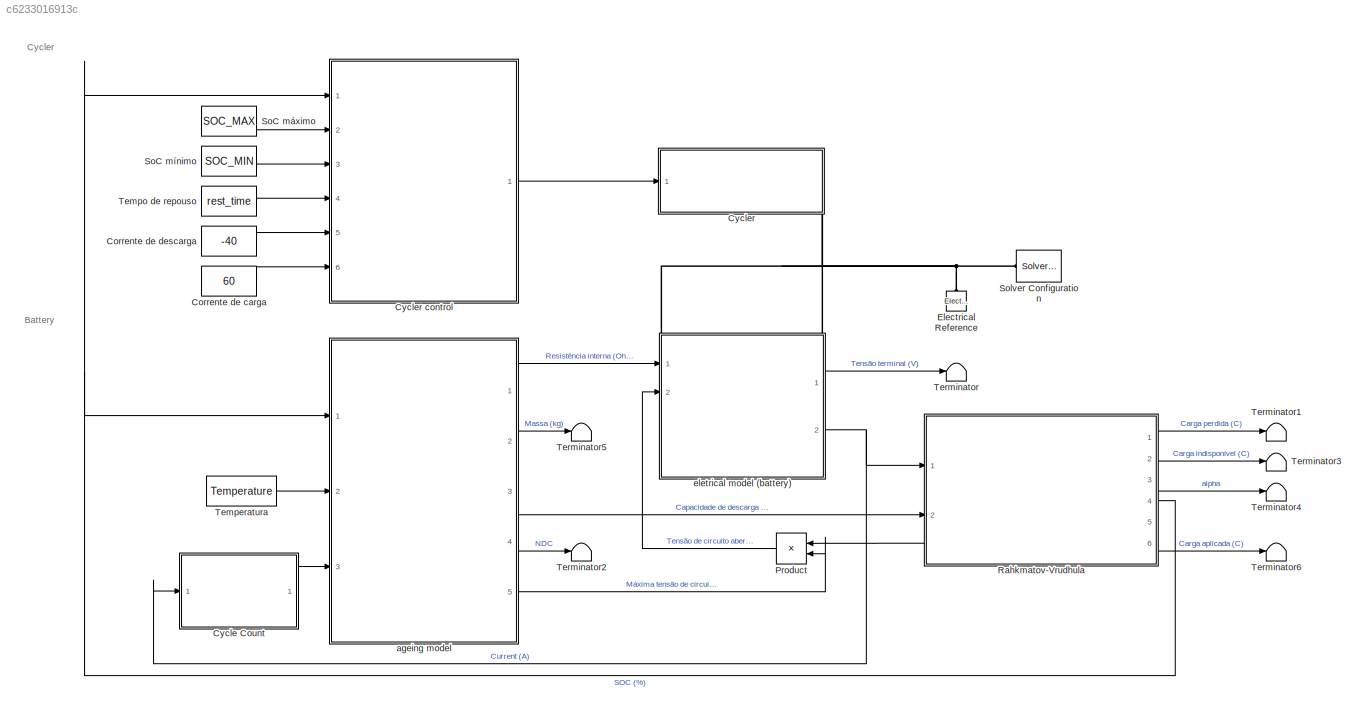
MODEL slx_c6233016913c
KIND model
CONFIG PostLoadFcn = load('input_modelo_bateria.mat')
BLOCK [Constant] Corrente de carga
  NameLocation = left
  Value = 60
BLOCK [Constant] Corrente de descarga
  NameLocation = left
  Value = -40
BLOCK [SubSystem] Cycle Count
  Ports = [1, 1]
  ReferencedSubsystem = cycle_count
  RequestExecContextInheritance = off
BLOCK [SubSystem] Cycler
  NameLocation = top
  PortSchema = {"entries":[{"content":{"sides":[{"content":{"connectorIds":["In1"]},"type":"ConnectorPlacement.EquallySpacedRectSide","uuid":"1f5119c1-e4c4-4d36-9ce4-0a74503307ce"},{"content":{"connectorIds":[],"side":"RIGHT"},"type":"ConnectorPlacement.EquallySpacedRectSide","uuid":"dcdfbcd6-0df9-4737-b1f4-f8955107c991"},{"content":{"connectorIds":[],"side":"TOP"},"type":"ConnectorPlacement.EquallySpacedRectSid...<+395ch>
  Ports = [1, 0, 0, 0, 0, 0, 2]
  ReferencedSubsystem = constant_current_load
  RequestExecContextInheritance = off
BLOCK [SubSystem] Cycler control
  Ports = [6, 1]
  ReferencedSubsystem = cycling_control
  RequestExecContextInheritance = off
BLOCK [Reference] Electrical Reference  REF=fl_lib/Electrical/Electrical Elements/Electrical Reference
  NameLocation = right
  Ports = [0, 0, 0, 0, 0, 1]
  SourceBlock = fl_lib/Electrical/Electrical Elements/Electrical Reference
  SourceProductBaseCode = PW,SS,VE
  SourceType = Electrical Reference
BLOCK [Product] Product
  Ports = [2, 1]
BLOCK [SubSystem] Rahkmatov-Vrudhula
  PortSchema = {"entries":[{"content":{"sides":[{"content":{"connectorIds":["In1","In2","Out6"]},"type":"ConnectorPlacement.EquallySpacedRectSide","uuid":"83f3e873-db9f-47d1-b7c3-7eda48a10b32"},{"content":{"connectorIds":["Out1","Out2","Out3","Out4","Out5"],"side":"RIGHT"},"type":"ConnectorPlacement.EquallySpacedRectSide","uuid":"48ac6012-cdb4-4752-bc48-afa50bea9f0a"},{"content":{"connectorIds":[],"side":"TOP"},...<+281ch>
  Ports = [2, 6]
  ReferencedSubsystem = Rahkmatov_Vrudhula
  RequestExecContextInheritance = off
BLOCK [Constant] SoC máximo
  NameLocation = left
  Value = SOC_MAX
BLOCK [Constant] SoC mínimo
  NameLocation = left
  Value = SOC_MIN
BLOCK [Reference] Solver Configuration  REF=nesl_utility/Solver
Configuration
  Ports = [0, 0, 0, 0, 0, 0, 1]
  SourceBlock = nesl_utility/Solver\nConfiguration
  SourceProductBaseCode = SS,PW,VE
  SourceType = Solver\nConfiguration
BLOCK [Constant] Temperatura
  Value = Temperature
BLOCK [Constant] Tempo de repouso
  NameLocation = left
  Value = rest_time
BLOCK [Terminator] Terminator
BLOCK [Terminator] Terminator1
BLOCK [Terminator] Terminator2
BLOCK [Terminator] Terminator3
BLOCK [Terminator] Terminator4
BLOCK [Terminator] Terminator5
BLOCK [Terminator] Terminator6
BLOCK [SubSystem] ageing model
  Ports = [3, 5]
  ReferencedSubsystem = ageing_model
  RequestExecContextInheritance = off
BLOCK [SubSystem] eletrical model (battery)
  PortSchema = {"entries":[{"content":{"sides":[{"content":{"connectorIds":["In1","In2"]},"type":"ConnectorPlacement.EquallySpacedRectSide","uuid":"e6309cc0-43d6-42db-b46d-fb5b38de698a"},{"content":{"connectorIds":["Out1","Out2"],"side":"RIGHT"},"type":"ConnectorPlacement.EquallySpacedRectSide","uuid":"a3175445-87c0-47b1-a387-288225673634"},{"content":{"connectorIds":["LConn1","LConn2"],"side":"TOP"},"type":"Con...<+414ch>
  Ports = [2, 2, 0, 0, 0, 2]
  ReferencedSubsystem = eletrical_model
  RequestExecContextInheritance = off
ANNOTATION (root): Battery
ANNOTATION (root): Cycler
LINE Corrente de carga:1 -> Cycler control:6
LINE Corrente de descarga:1 -> Cycler control:5
LINE Cycle Count:1 -> ageing model:3
LINE Cycler control:1 -> Cycler:1
LINE Product:1 -> eletrical model (battery):2
LINE Rahkmatov-Vrudhula:1 -> Terminator1:1
LINE Rahkmatov-Vrudhula:2 -> Terminator3:1
LINE Rahkmatov-Vrudhula:3 -> Terminator4:1
NET Rahkmatov-Vrudhula:4 -> Cycler control:1, ageing model:1
LINE Rahkmatov-Vrudhula:5 -> Terminator6:1
LINE Rahkmatov-Vrudhula:6 -> Product:1
LINE SoC máximo:1 -> Cycler control:2
LINE SoC mínimo:1 -> Cycler control:3
LINE Temperatura:1 -> ageing model:2
LINE Tempo de repouso:1 -> Cycler control:4
LINE ageing model:1 -> eletrical model (battery):1
LINE ageing model:2 -> Terminator5:1
LINE ageing model:3 -> Rahkmatov-Vrudhula:2
LINE ageing model:4 -> Terminator2:1
LINE ageing model:5 -> Product:2
LINE eletrical model (battery):1 -> Terminator:1
NET eletrical model (battery):2 -> Cycle Count:1, Rahkmatov-Vrudhula:1
PLINE Cycler:RConn1 -- eletrical model (battery):LConn1
PNET net1: Cycler:RConn2 -- Electrical Reference:LConn1 -- Solver Configuration:RConn1 -- eletrical model (battery):LConn2
note: NET lines group one-source signal fan-out (src -> all destinations, sorted); 1:1 wires keep LINE; PNET lines group multi-terminal physical nets as a canonical sorted terminal list (undirected conserving connections); 2-terminal nets keep the pairwise PLINE form
